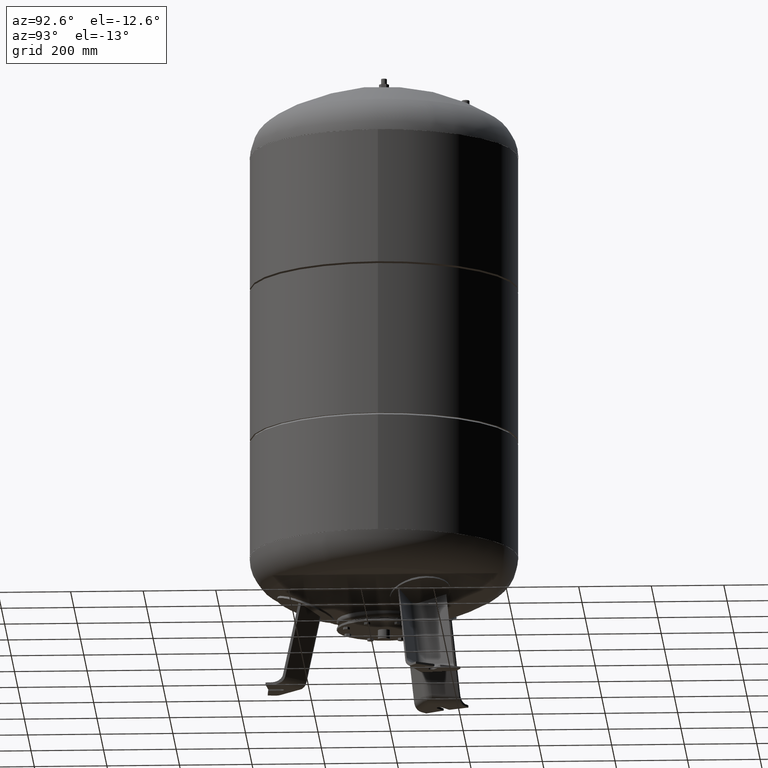
[diagram: clean part render]
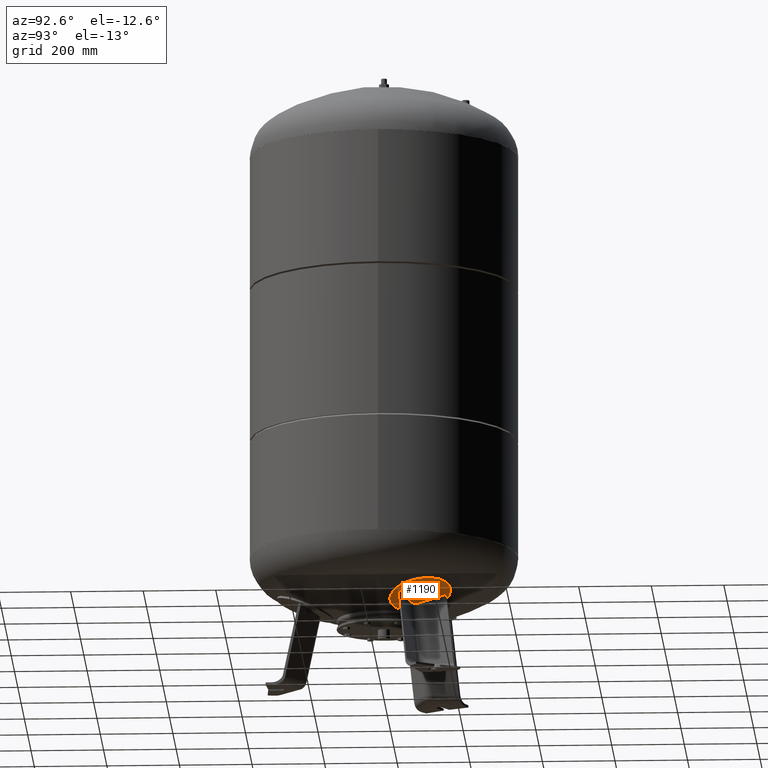
[diagram: same view with one face highlighted and labeled with its STEP entity id]
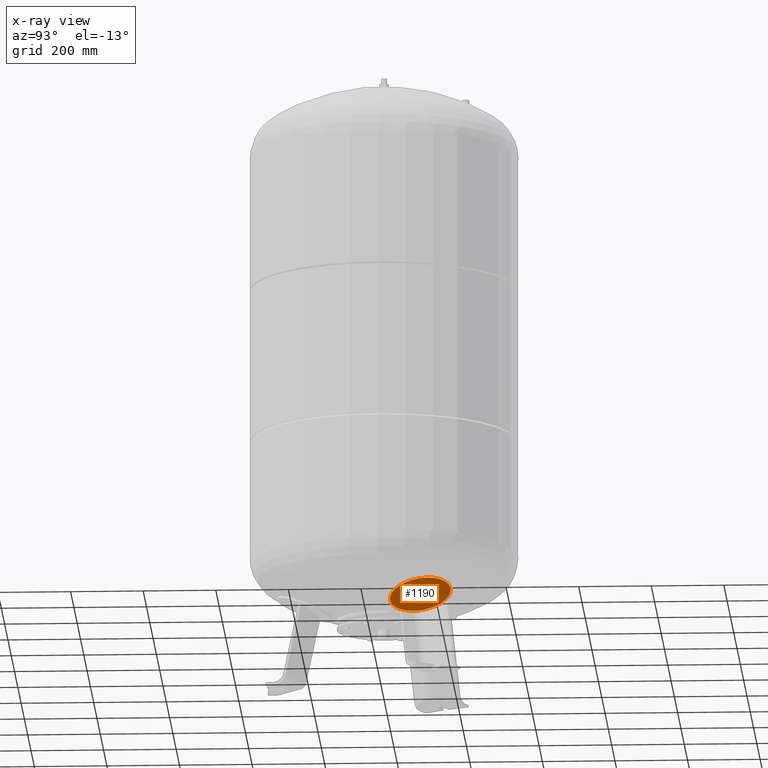
[diagram: x-ray of the same camera — body ghosted, the highlighted face saturated]
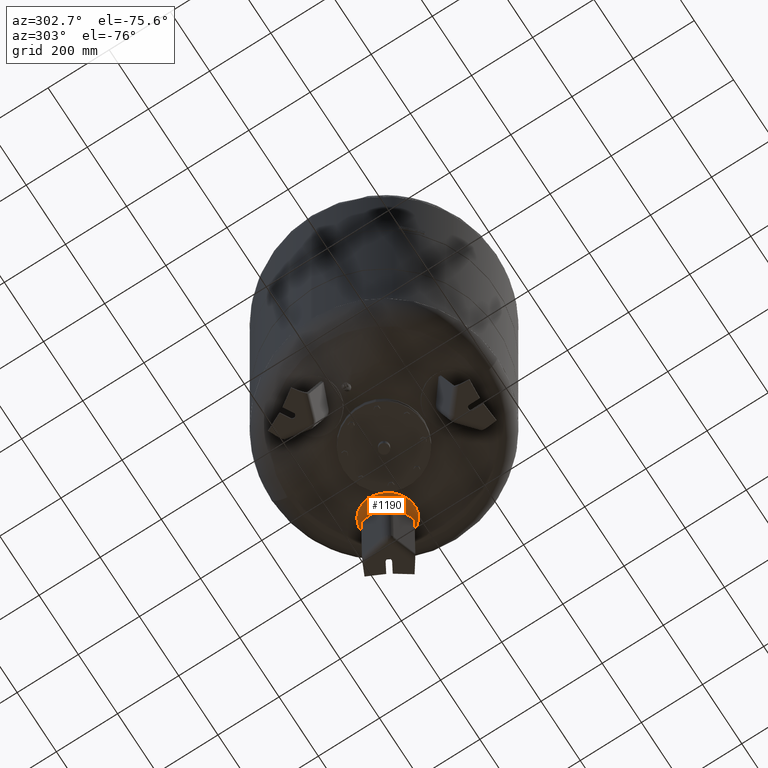
[diagram: same view with one face highlighted and labeled with its STEP entity id]
A machine part, auxiliary view. The second image highlights one B-rep face of the part: STEP entity #1190.
The next image is the same camera in x-ray: the body ghosted, the highlighted face saturated — about 0% of this face is hidden behind the body in this view.
A second angle (auxiliary view) of the same face is appended — the face is thin or edge-on in the first view.
In plain terms, the highlighted spherical surface has radius 594 mm.
Its self-contained STEP definition (entity closure, byte-faithful):
#1098=CARTESIAN_POINT('',(256.769650287754130,148.246026532526630,254.194420566592950));
#1099=VERTEX_POINT('',#1098);
#1108=CARTESIAN_POINT('',(119.323908097931210,68.891690280264498,193.271869143891820));
#1109=VERTEX_POINT('',#1108);
#1110=CARTESIAN_POINT('',(188.046779192842680,108.568858406395560,223.733144855242360));
#1111=DIRECTION('',(0.310355748208370,0.179183974772650,-0.933580426497202));
#1112=DIRECTION('',(0.808504365822488,0.466790213248601,0.358367949545300));
#1113=AXIS2_PLACEMENT_3D('',#1110,#1111,#1112);
#1114=CIRCLE('',#1113,85.0);
#1115=EDGE_CURVE('',#1109,#1099,#1114,.T.);
#1171=CARTESIAN_POINT('',(188.046779192842680,108.568858406395560,223.733144855242360));
#1172=DIRECTION('',(0.310355748208370,0.179183974772650,-0.933580426497202));
#1173=DIRECTION('',(0.808504365822488,0.466790213248601,0.358367949545300));
#1174=AXIS2_PLACEMENT_3D('',#1171,#1172,#1173);
#1175=CIRCLE('',#1174,85.0);
#1176=EDGE_CURVE('',#1099,#1109,#1175,.T.);
#1181=CARTESIAN_POINT('',(5.592702379731719,3.228948043601207,772.572841979124180));
#1182=DIRECTION('',(0.500000000000000,-0.866025403784439,-1.554724E-016));
#1183=DIRECTION('',(0.808504365822488,0.466790213248601,0.358367949545300));
#1184=AXIS2_PLACEMENT_3D('',#1181,#1182,#1183);
#1185=SPHERICAL_SURFACE('',#1184,594.0);
#1186=ORIENTED_EDGE('',*,*,#1176,.T.);
#1187=ORIENTED_EDGE('',*,*,#1115,.T.);
#1188=EDGE_LOOP('',(#1186,#1187));
#1189=FACE_OUTER_BOUND('',#1188,.T.);
#1190=ADVANCED_FACE('',(#1189),#1185,.T.);